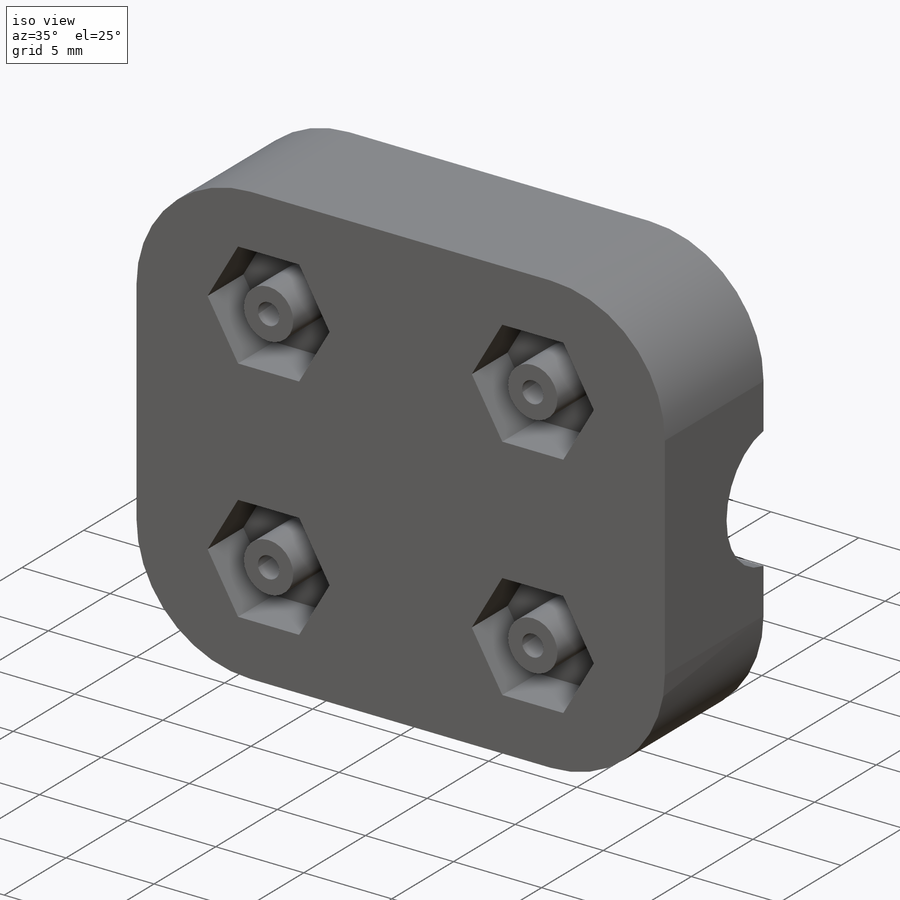
[diagram: iso view]
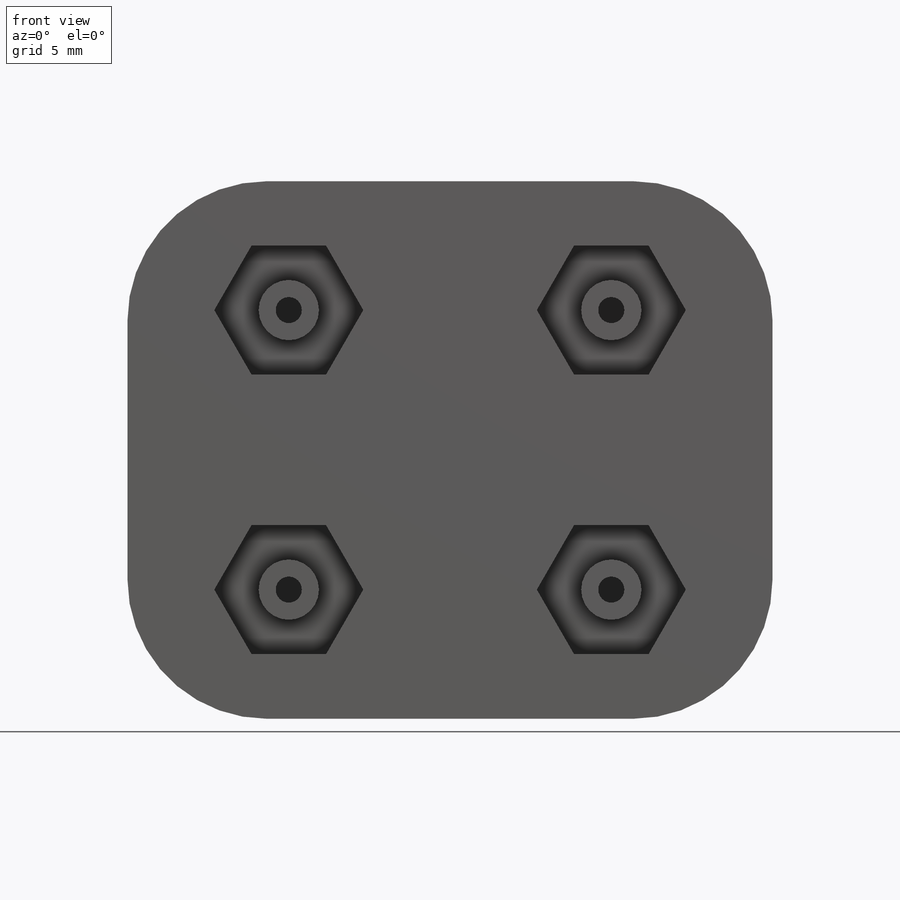
[diagram: front view]
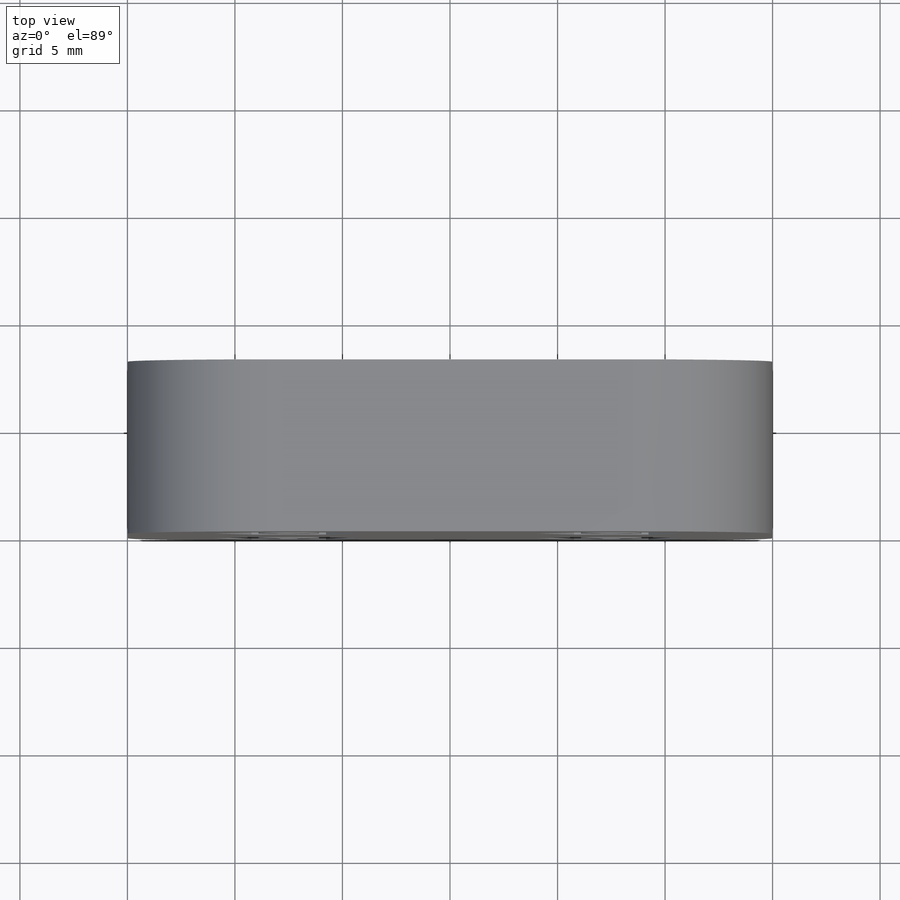
[diagram: top view]
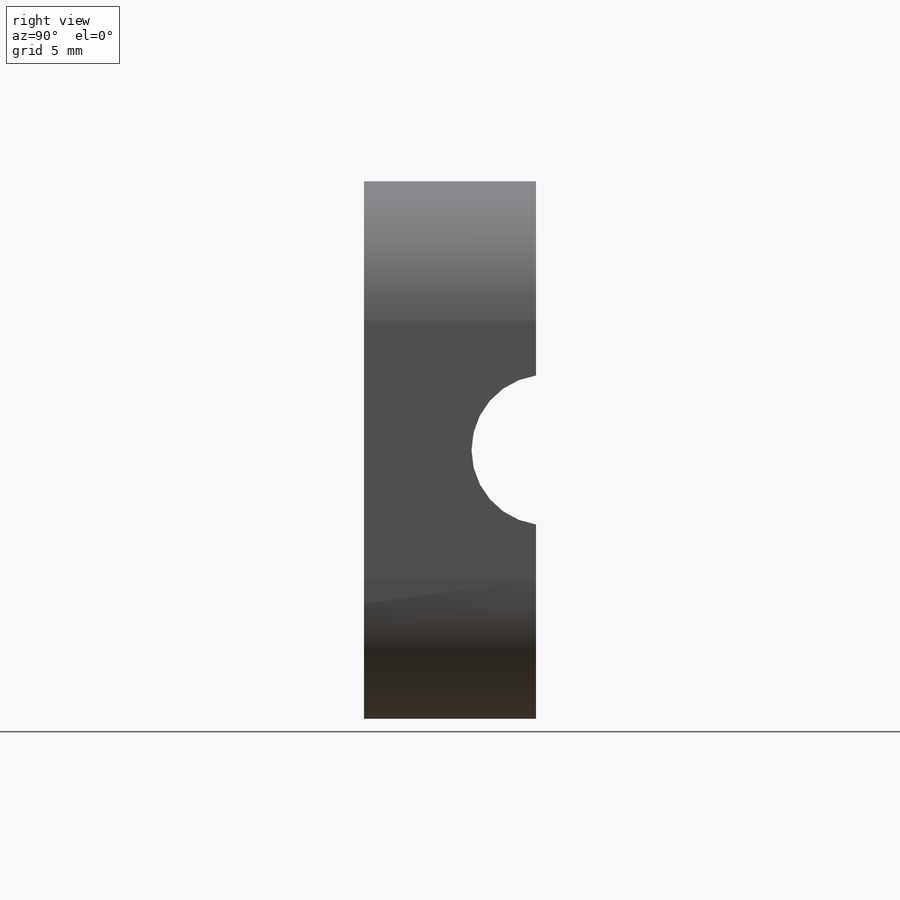
[diagram: right view]
SOLIDWORKS PART (.sldprt)
format: sldprt  version: not decoded by parser v0  size: 287,744 bytes
history: native  units: mm
features: sketch x6, cut_extrude x4, extrude x2, material x1 (+11 scaffold rows collapsed)
feature tree (24):
  scaffold x11  (default folders/planes/origin — collapsed)
  material  "Material <not specified>"
  sketch  "Sketch9"
  extrude  "Boss-Extrude2"  Depth=8mm
  sketch  "Sketch10"
  cut_extrude  "Cut-Extrude5"  Depth=4.7mm
  sketch  "Sketch11"  dims[D2=~1.703588mm D1=0.0mm]
  cut_extrude  "Cut-Extrude6"  Depth=2.9mm
  sketch  "Sketch12"  dims[D1=5.0mm]
  cut_extrude  "Cut-Extrude7"  [1 undecoded]
  sketch  "Sketch13"  dims[D1=5.0mm]
  cut_extrude  "Cut-Extrude8"  Depth=15mm
  sketch  "Sketch14"  dims[D1=0.3978mm D2=0.3978mm D3=0.3978mm D4=0.3978mm D5=0.7956mm D6=0.7956mm D7=0.7956mm D8=0.7956mm]
  extrude  "Boss-Extrude3"  [1 undecoded]
decode coverage: 8 of 12 modeling features carry decoded parameters
note: ~ marks probable driven/reference dimensions
note: 2 parameter values undecoded
note: suppression state not decoded; provenance and decode notes live in map.json
